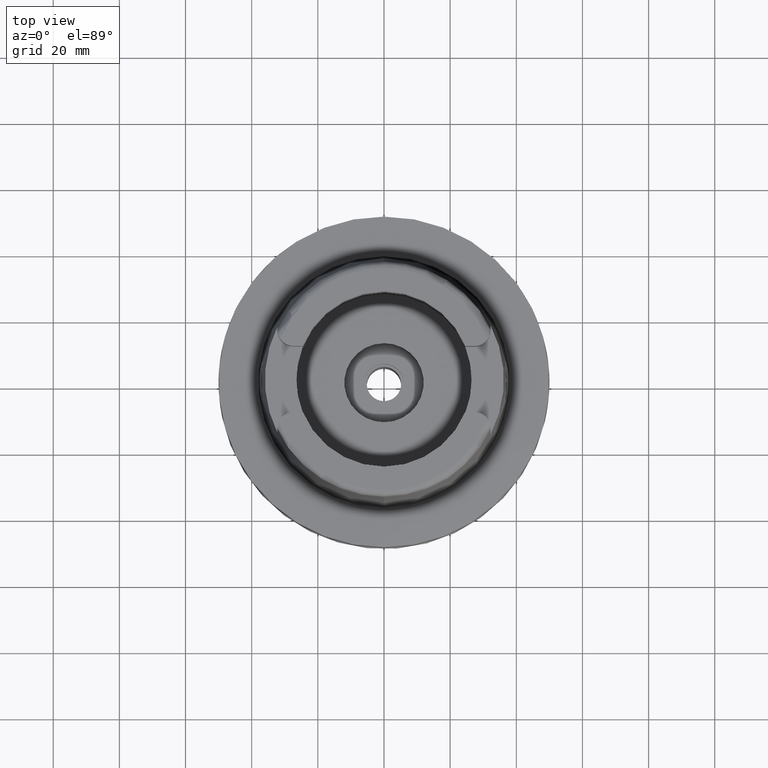
[diagram: clean part render]
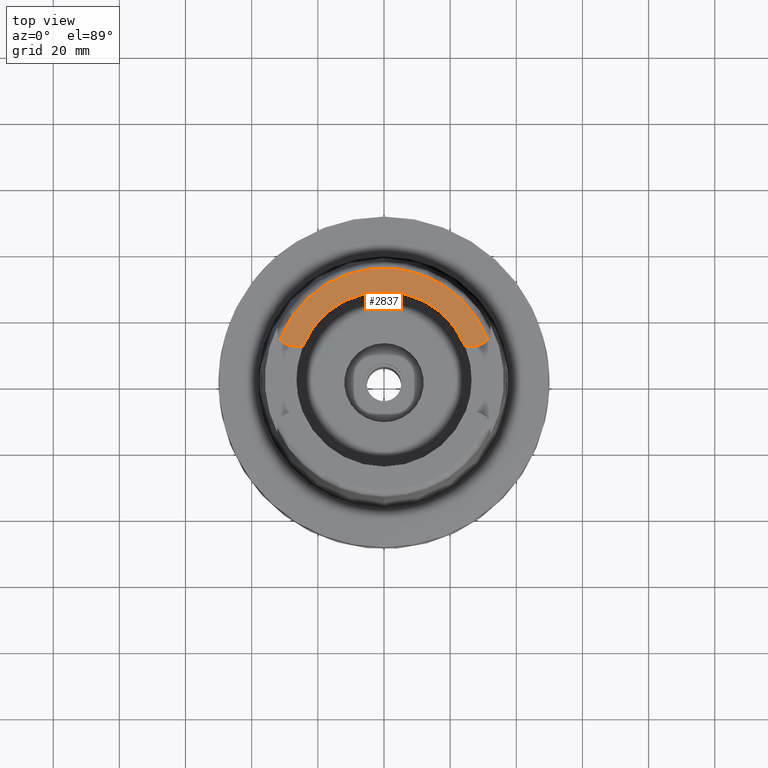
[diagram: same view with one face highlighted and labeled with its STEP entity id]
A machine part, top view. The second image highlights one B-rep face of the part: STEP entity #2837.
In plain terms, the highlighted planar face has unit normal (0, 0, 1).
Its self-contained STEP definition (entity closure, byte-faithful):
#120 = CIRCLE ( 'NONE', #2841, 33.59743838135999994 ) ;
#151 = CARTESIAN_POINT ( 'NONE',  ( -24.53670515777999839, 10.00999999999999979, 50.00000000000000000 ) ) ;
#169 = VERTEX_POINT ( 'NONE', #1224 ) ;
#349 = CARTESIAN_POINT ( 'NONE',  ( 24.53670515777999839, 10.00999999999999979, 50.00000000000000000 ) ) ;
#373 = ORIENTED_EDGE ( 'NONE', *, *, #2476, .F. ) ;
#726 = DIRECTION ( 'NONE',  ( 1.000000000000000000, 0.0000000000000000000, 0.0000000000000000000 ) ) ;
#773 = CIRCLE ( 'NONE', #3904, 4.879999999999999005 ) ;
#949 = DIRECTION ( 'NONE',  ( 0.0000000000000000000, 1.000000000000000000, 0.0000000000000000000 ) ) ;
#1042 = CARTESIAN_POINT ( 'NONE',  ( -27.36999999999999744, 10.00999999999999979, 50.00000000000000000 ) ) ;
#1110 = CARTESIAN_POINT ( 'NONE',  ( 0.0000000000000000000, 0.0000000000000000000, 50.00000000000000000 ) ) ;
#1141 = DIRECTION ( 'NONE',  ( 0.0000000000000000000, 0.0000000000000000000, 1.000000000000000000 ) ) ;
#1176 = EDGE_CURVE ( 'NONE', #1837, #5543, #3791, .T. ) ;
#1224 = CARTESIAN_POINT ( 'NONE',  ( 27.36999999999999744, 10.00999999999999979, 50.00000000000000000 ) ) ;
#1253 = VERTEX_POINT ( 'NONE', #2000 ) ;
#1302 = CIRCLE ( 'NONE', #1479, 26.50000000000000000 ) ;
#1479 = AXIS2_PLACEMENT_3D ( 'NONE', #5216, #2676, #949 ) ;
#1676 = DIRECTION ( 'NONE',  ( 0.0000000000000000000, 0.0000000000000000000, 1.000000000000000000 ) ) ;
#1819 = DIRECTION ( 'NONE',  ( 0.0000000000000000000, 0.0000000000000000000, -1.000000000000000000 ) ) ;
#1821 = ORIENTED_EDGE ( 'NONE', *, *, #4403, .F. ) ;
#1837 = VERTEX_POINT ( 'NONE', #1042 ) ;
#1892 = CARTESIAN_POINT ( 'NONE',  ( 0.0000000000000000000, 0.0000000000000000000, 50.00000000000000000 ) ) ;
#2000 = CARTESIAN_POINT ( 'NONE',  ( 31.35385269249000473, 12.07161079256999869, 50.00000000000000000 ) ) ;
#2192 = DIRECTION ( 'NONE',  ( 0.0000000000000000000, -1.000000000000000000, 0.0000000000000000000 ) ) ;
#2245 = CARTESIAN_POINT ( 'NONE',  ( -27.36999999999999744, 14.89000000000000057, 50.00000000000000000 ) ) ;
#2282 = AXIS2_PLACEMENT_3D ( 'NONE', #4606, #5035, #4972 ) ;
#2317 = EDGE_CURVE ( 'NONE', #3263, #2515, #3116, .T. ) ;
#2398 = EDGE_CURVE ( 'NONE', #1837, #4613, #773, .T. ) ;
#2468 = LINE ( 'NONE', #349, #5536 ) ;
#2476 = EDGE_CURVE ( 'NONE', #2515, #5543, #1302, .T. ) ;
#2515 = VERTEX_POINT ( 'NONE', #3452 ) ;
#2676 = DIRECTION ( 'NONE',  ( 0.0000000000000000000, 0.0000000000000000000, 1.000000000000000000 ) ) ;
#2751 = EDGE_CURVE ( 'NONE', #3263, #169, #2468, .T. ) ;
#2837 = ADVANCED_FACE ( 'NONE', ( #3259 ), #4964, .T. ) ;
#2841 = AXIS2_PLACEMENT_3D ( 'NONE', #1892, #4104, #4865 ) ;
#2852 = DIRECTION ( 'NONE',  ( 0.9259134021805098813, 0.3777358490566039562, 0.0000000000000000000 ) ) ;
#2907 = CARTESIAN_POINT ( 'NONE',  ( 0.0000000000000000000, 0.0000000000000000000, 50.00000000000000000 ) ) ;
#3116 = CIRCLE ( 'NONE', #4804, 26.50000000000000711 ) ;
#3127 = ORIENTED_EDGE ( 'NONE', *, *, #2398, .F. ) ;
#3145 = VECTOR ( 'NONE', #3294, 1000.000000000000000 ) ;
#3154 = CARTESIAN_POINT ( 'NONE',  ( 24.53670515777999839, 10.00999999999999979, 50.00000000000000000 ) ) ;
#3259 = FACE_OUTER_BOUND ( 'NONE', #5114, .T. ) ;
#3263 = VERTEX_POINT ( 'NONE', #3154 ) ;
#3294 = DIRECTION ( 'NONE',  ( 1.000000000000000000, 1.429464217237000036E-13, 0.0000000000000000000 ) ) ;
#3318 = DIRECTION ( 'NONE',  ( 1.000000000000000000, -1.423194637337000101E-13, 0.0000000000000000000 ) ) ;
#3335 = ORIENTED_EDGE ( 'NONE', *, *, #2751, .T. ) ;
#3452 = CARTESIAN_POINT ( 'NONE',  ( 0.0000000000000000000, 26.50000000000000000, 50.00000000000000000 ) ) ;
#3714 = ORIENTED_EDGE ( 'NONE', *, *, #4736, .F. ) ;
#3720 = CIRCLE ( 'NONE', #2282, 4.880000000000001670 ) ;
#3762 = CARTESIAN_POINT ( 'NONE',  ( -27.36999999999999744, 10.00999999999999979, 50.00000000000000000 ) ) ;
#3791 = LINE ( 'NONE', #3762, #3145 ) ;
#3899 = ORIENTED_EDGE ( 'NONE', *, *, #1176, .T. ) ;
#3904 = AXIS2_PLACEMENT_3D ( 'NONE', #2245, #1819, #2192 ) ;
#3912 = AXIS2_PLACEMENT_3D ( 'NONE', #1110, #1141, #726 ) ;
#3966 = CARTESIAN_POINT ( 'NONE',  ( -31.35385269249000473, 12.07161079256999869, 50.00000000000000000 ) ) ;
#4104 = DIRECTION ( 'NONE',  ( 0.0000000000000000000, 0.0000000000000000000, -1.000000000000000000 ) ) ;
#4403 = EDGE_CURVE ( 'NONE', #1253, #169, #3720, .T. ) ;
#4606 = CARTESIAN_POINT ( 'NONE',  ( 27.36999999999999744, 14.89000000000000057, 50.00000000000000000 ) ) ;
#4613 = VERTEX_POINT ( 'NONE', #3966 ) ;
#4715 = ORIENTED_EDGE ( 'NONE', *, *, #2317, .F. ) ;
#4736 = EDGE_CURVE ( 'NONE', #4613, #1253, #120, .T. ) ;
#4804 = AXIS2_PLACEMENT_3D ( 'NONE', #2907, #1676, #2852 ) ;
#4865 = DIRECTION ( 'NONE',  ( -0.9332215253017949186, 0.3593015233941980191, 0.0000000000000000000 ) ) ;
#4964 = PLANE ( 'NONE',  #3912 ) ;
#4972 = DIRECTION ( 'NONE',  ( 0.8163632566568778115, -0.5775387720149849358, 0.0000000000000000000 ) ) ;
#5035 = DIRECTION ( 'NONE',  ( 0.0000000000000000000, 0.0000000000000000000, -1.000000000000000000 ) ) ;
#5114 = EDGE_LOOP ( 'NONE', ( #3899, #373, #4715, #3335, #1821, #3714, #3127 ) ) ;
#5216 = CARTESIAN_POINT ( 'NONE',  ( 0.0000000000000000000, 0.0000000000000000000, 50.00000000000000000 ) ) ;
#5536 = VECTOR ( 'NONE', #3318, 1000.000000000000000 ) ;
#5543 = VERTEX_POINT ( 'NONE', #151 ) ;